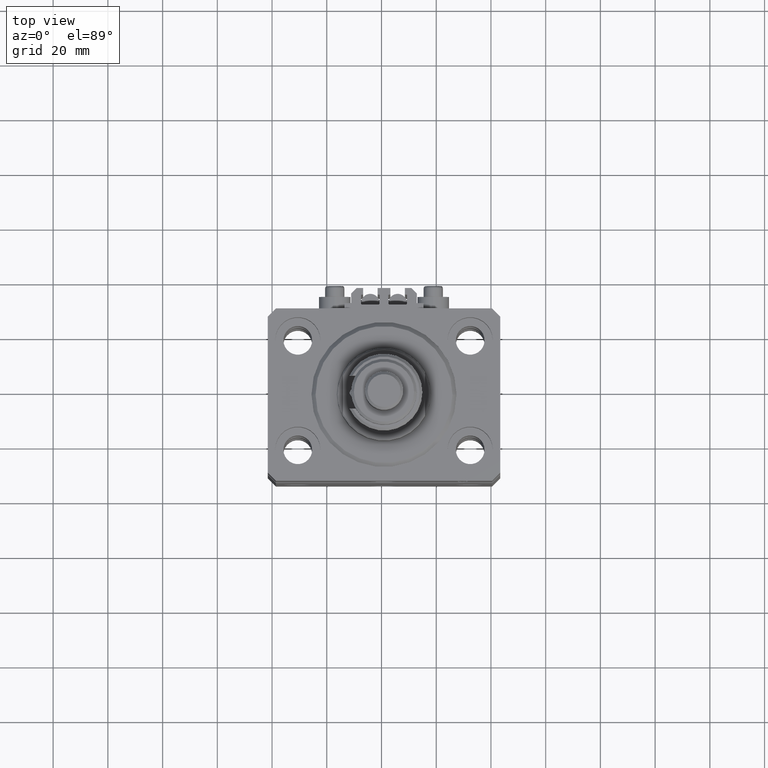
[diagram: clean part render]
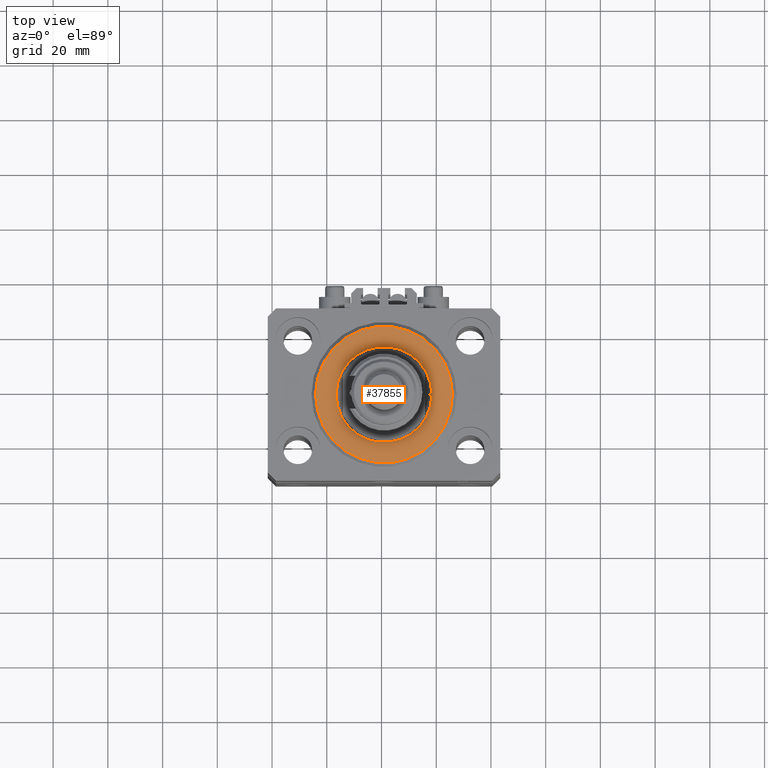
[diagram: same view with one face highlighted and labeled with its STEP entity id]
A machine part, top view. The second image highlights one B-rep face of the part: STEP entity #37855.
In plain terms, the highlighted planar face has unit normal (0, 0, -1).
Its self-contained STEP definition (entity closure, byte-faithful):
#1947 = EDGE_CURVE ( 'NONE', #6892, #12427, #26794, .T. ) ;
#2501 = ORIENTED_EDGE ( 'NONE', *, *, #1947, .T. ) ;
#2585 = AXIS2_PLACEMENT_3D ( 'NONE', #21206, #37182, #17264 ) ;
#3464 = EDGE_LOOP ( 'NONE', ( #24231, #22065 ) ) ;
#3578 = DIRECTION ( 'NONE',  ( -0.000000000000000000, -0.000000000000000000, -1.000000000000000000 ) ) ;
#5206 = PLANE ( 'NONE',  #2585 ) ;
#6813 = CARTESIAN_POINT ( 'NONE',  ( 0.000000000000000000, 0.000000000000000000, 0.000000000000000000 ) ) ;
#6892 = VERTEX_POINT ( 'NONE', #26050 ) ;
#9005 = AXIS2_PLACEMENT_3D ( 'NONE', #50777, #14901, #42929 ) ;
#9140 = FACE_BOUND ( 'NONE', #35226, .T. ) ;
#10300 = AXIS2_PLACEMENT_3D ( 'NONE', #31870, #3578, #23497 ) ;
#12427 = VERTEX_POINT ( 'NONE', #49485 ) ;
#14901 = DIRECTION ( 'NONE',  ( 0.000000000000000000, 0.000000000000000000, 1.000000000000000000 ) ) ;
#17264 = DIRECTION ( 'NONE',  ( 1.000000000000000000, 0.000000000000000000, -0.000000000000000000 ) ) ;
#17695 = DIRECTION ( 'NONE',  ( 0.000000000000000000, 0.000000000000000000, 1.000000000000000000 ) ) ;
#20415 = CARTESIAN_POINT ( 'NONE',  ( 24.99999999999998224, 0.000000000000000000, 0.000000000000000000 ) ) ;
#21206 = CARTESIAN_POINT ( 'NONE',  ( 0.000000000000000000, 0.000000000000000000, 0.000000000000000000 ) ) ;
#21643 = CARTESIAN_POINT ( 'NONE',  ( 0.000000000000000000, 0.000000000000000000, 0.000000000000000000 ) ) ;
#22065 = ORIENTED_EDGE ( 'NONE', *, *, #42752, .T. ) ;
#22281 = CIRCLE ( 'NONE', #47364, 24.99999999999998224 ) ;
#22763 = VERTEX_POINT ( 'NONE', #28745 ) ;
#23497 = DIRECTION ( 'NONE',  ( 1.000000000000000000, 0.000000000000000000, 0.000000000000000000 ) ) ;
#24231 = ORIENTED_EDGE ( 'NONE', *, *, #25316, .T. ) ;
#25316 = EDGE_CURVE ( 'NONE', #29593, #22763, #22281, .T. ) ;
#25965 = DIRECTION ( 'NONE',  ( 1.000000000000000000, 0.000000000000000000, 0.000000000000000000 ) ) ;
#26050 = CARTESIAN_POINT ( 'NONE',  ( 17.50000000000000000, 0.000000000000000000, 2.168404344971008868E-16 ) ) ;
#26794 = CIRCLE ( 'NONE', #30126, 17.50000000000000000 ) ;
#27368 = ORIENTED_EDGE ( 'NONE', *, *, #28077, .T. ) ;
#28077 = EDGE_CURVE ( 'NONE', #12427, #6892, #34135, .T. ) ;
#28745 = CARTESIAN_POINT ( 'NONE',  ( -24.99999999999998224, 3.153465507804433615E-15, 0.000000000000000000 ) ) ;
#29593 = VERTEX_POINT ( 'NONE', #20415 ) ;
#30126 = AXIS2_PLACEMENT_3D ( 'NONE', #21643, #17695, #33689 ) ;
#31870 = CARTESIAN_POINT ( 'NONE',  ( 0.000000000000000000, 0.000000000000000000, 0.000000000000000000 ) ) ;
#32894 = CIRCLE ( 'NONE', #10300, 24.99999999999998224 ) ;
#33689 = DIRECTION ( 'NONE',  ( 1.000000000000000000, 0.000000000000000000, 0.000000000000000000 ) ) ;
#34135 = CIRCLE ( 'NONE', #9005, 17.50000000000000000 ) ;
#35226 = EDGE_LOOP ( 'NONE', ( #2501, #27368 ) ) ;
#37182 = DIRECTION ( 'NONE',  ( 0.000000000000000000, 0.000000000000000000, 1.000000000000000000 ) ) ;
#37855 = ADVANCED_FACE ( 'NONE', ( #9140, #41092 ), #5206, .F. ) ;
#38772 = DIRECTION ( 'NONE',  ( -0.000000000000000000, -0.000000000000000000, -1.000000000000000000 ) ) ;
#41092 = FACE_OUTER_BOUND ( 'NONE', #3464, .T. ) ;
#42752 = EDGE_CURVE ( 'NONE', #22763, #29593, #32894, .T. ) ;
#42929 = DIRECTION ( 'NONE',  ( 1.000000000000000000, 0.000000000000000000, 0.000000000000000000 ) ) ;
#47364 = AXIS2_PLACEMENT_3D ( 'NONE', #6813, #38772, #25965 ) ;
#49485 = CARTESIAN_POINT ( 'NONE',  ( -17.50000000000000000, 2.143131898507868643E-15, 2.168404344971008868E-16 ) ) ;
#50777 = CARTESIAN_POINT ( 'NONE',  ( 0.000000000000000000, 0.000000000000000000, 0.000000000000000000 ) ) ;